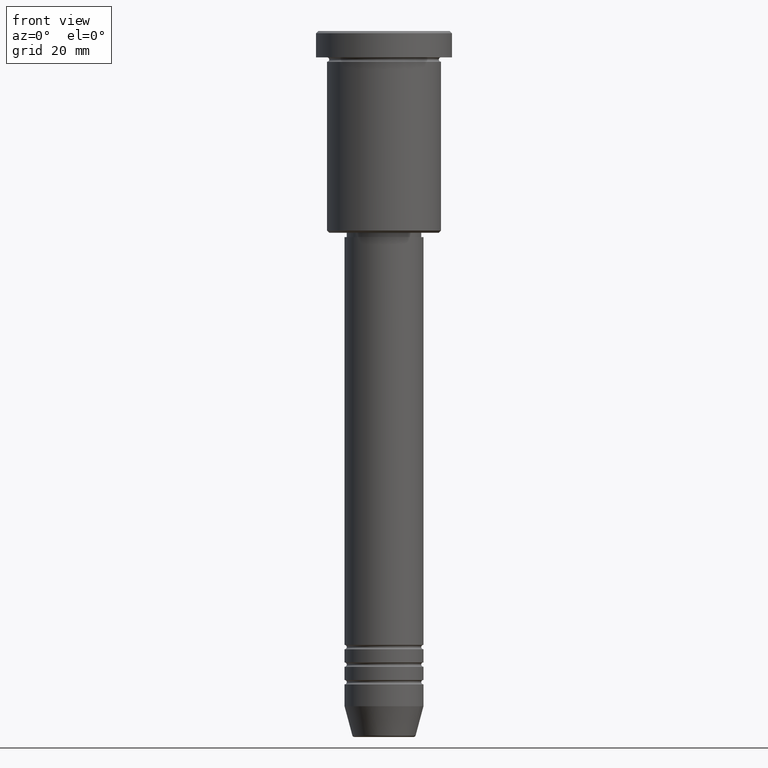
[diagram: clean part render]
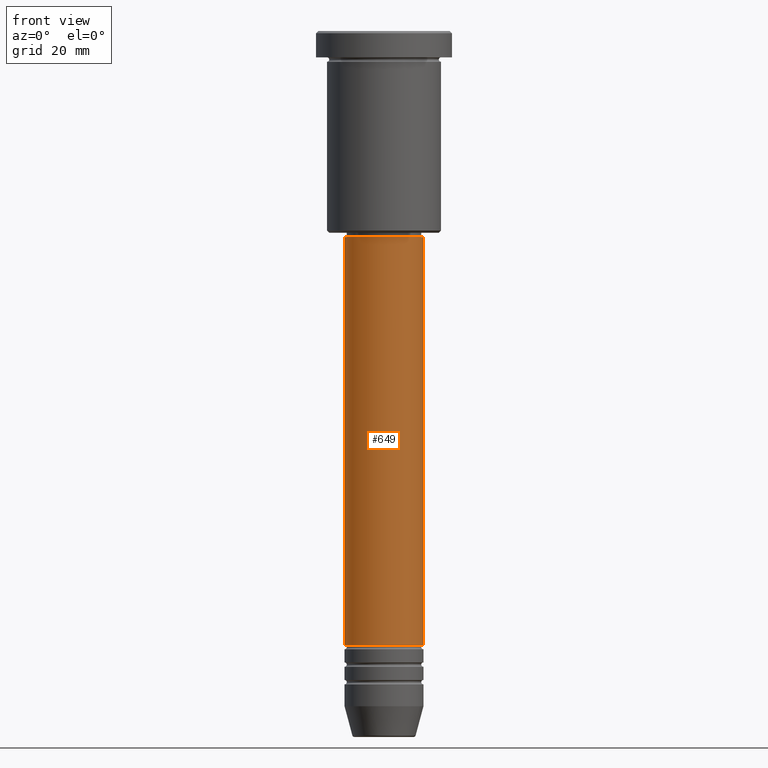
[diagram: same view with one face highlighted and labeled with its STEP entity id]
A machine part, front view. The second image highlights one B-rep face of the part: STEP entity #649.
In plain terms, the highlighted cylindrical surface (partial cylindrical patch) has radius 9 mm, axis along (-0, -0, 1).
Its self-contained STEP definition (entity closure, byte-faithful):
#14 = VERTEX_POINT ( 'NONE', #326 ) ;
#78 = ORIENTED_EDGE ( 'NONE', *, *, #734, .T. ) ;
#128 = EDGE_CURVE ( 'NONE', #349, #651, #1078, .T. ) ;
#144 = AXIS2_PLACEMENT_3D ( 'NONE', #401, #311, #764 ) ;
#180 = FACE_OUTER_BOUND ( 'NONE', #1091, .T. ) ;
#211 = VECTOR ( 'NONE', #1037, 1000.000000000000000 ) ;
#213 = CIRCLE ( 'NONE', #758, 9.000000000000001776 ) ;
#216 = ORIENTED_EDGE ( 'NONE', *, *, #467, .F. ) ;
#247 = DIRECTION ( 'NONE',  ( -0.000000000000000000, -0.000000000000000000, 1.000000000000000000 ) ) ;
#282 = CARTESIAN_POINT ( 'NONE',  ( 0.000000000000000000, 0.000000000000000000, 0.000000000000000000 ) ) ;
#302 = CARTESIAN_POINT ( 'NONE',  ( -9.000000000000001776, 1.102182119232617911E-15, -139.9999999999999147 ) ) ;
#311 = DIRECTION ( 'NONE',  ( -0.000000000000000000, -0.000000000000000000, 1.000000000000000000 ) ) ;
#326 = CARTESIAN_POINT ( 'NONE',  ( -8.999999999999998224, 1.102182119232617714E-15, -47.00000000000000711 ) ) ;
#349 = VERTEX_POINT ( 'NONE', #377 ) ;
#355 = ORIENTED_EDGE ( 'NONE', *, *, #1120, .F. ) ;
#367 = CARTESIAN_POINT ( 'NONE',  ( 8.999999999999998224, 0.000000000000000000, -47.00000000000000711 ) ) ;
#377 = CARTESIAN_POINT ( 'NONE',  ( 9.000000000000001776, 0.000000000000000000, -139.9999999999999147 ) ) ;
#401 = CARTESIAN_POINT ( 'NONE',  ( 0.000000000000000000, 0.000000000000000000, -47.00000000000000711 ) ) ;
#467 = EDGE_CURVE ( 'NONE', #744, #14, #958, .T. ) ;
#490 = CARTESIAN_POINT ( 'NONE',  ( 0.000000000000000000, 0.000000000000000000, -139.9999999999999147 ) ) ;
#547 = CARTESIAN_POINT ( 'NONE',  ( 9.000000000000000000, 0.000000000000000000, 0.000000000000000000 ) ) ;
#649 = ADVANCED_FACE ( 'NONE', ( #180 ), #1015, .T. ) ;
#651 = VERTEX_POINT ( 'NONE', #367 ) ;
#673 = DIRECTION ( 'NONE',  ( 1.000000000000000000, 0.000000000000000000, 0.000000000000000000 ) ) ;
#734 = EDGE_CURVE ( 'NONE', #744, #349, #213, .T. ) ;
#744 = VERTEX_POINT ( 'NONE', #302 ) ;
#758 = AXIS2_PLACEMENT_3D ( 'NONE', #490, #247, #673 ) ;
#764 = DIRECTION ( 'NONE',  ( 1.000000000000000000, 0.000000000000000000, 0.000000000000000000 ) ) ;
#779 = AXIS2_PLACEMENT_3D ( 'NONE', #282, #932, #823 ) ;
#823 = DIRECTION ( 'NONE',  ( 1.000000000000000000, 0.000000000000000000, 0.000000000000000000 ) ) ;
#847 = CARTESIAN_POINT ( 'NONE',  ( -9.000000000000000000, 1.102182119232617714E-15, 0.000000000000000000 ) ) ;
#885 = DIRECTION ( 'NONE',  ( -0.000000000000000000, -0.000000000000000000, 1.000000000000000000 ) ) ;
#932 = DIRECTION ( 'NONE',  ( -0.000000000000000000, -0.000000000000000000, 1.000000000000000000 ) ) ;
#958 = LINE ( 'NONE', #847, #211 ) ;
#1011 = ORIENTED_EDGE ( 'NONE', *, *, #128, .T. ) ;
#1015 = CYLINDRICAL_SURFACE ( 'NONE', #779, 9.000000000000000000 ) ;
#1037 = DIRECTION ( 'NONE',  ( -0.000000000000000000, -0.000000000000000000, 1.000000000000000000 ) ) ;
#1042 = VECTOR ( 'NONE', #885, 1000.000000000000000 ) ;
#1068 = CIRCLE ( 'NONE', #144, 8.999999999999998224 ) ;
#1078 = LINE ( 'NONE', #547, #1042 ) ;
#1091 = EDGE_LOOP ( 'NONE', ( #216, #78, #1011, #355 ) ) ;
#1120 = EDGE_CURVE ( 'NONE', #14, #651, #1068, .T. ) ;